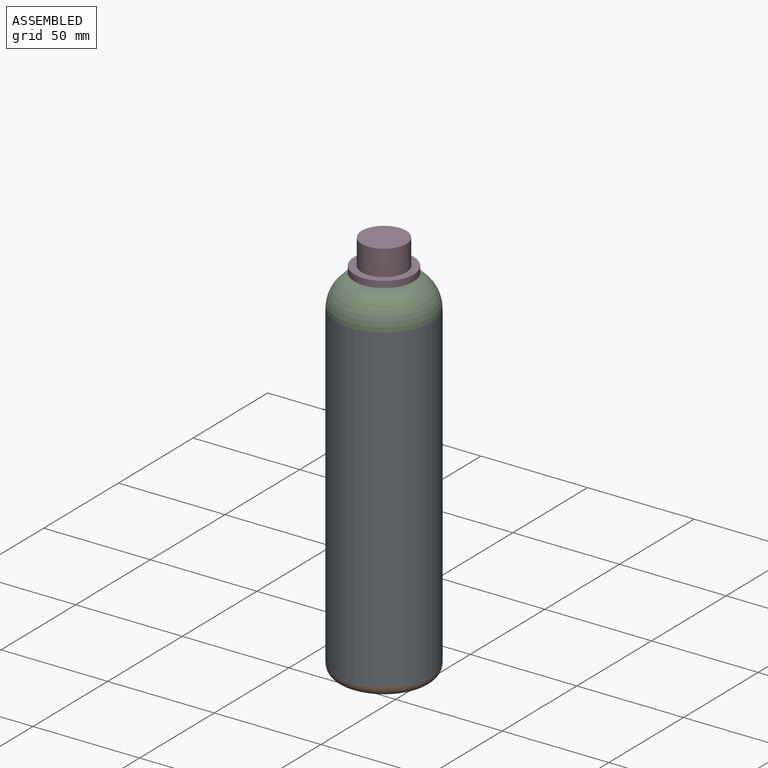
[diagram: assembled view]
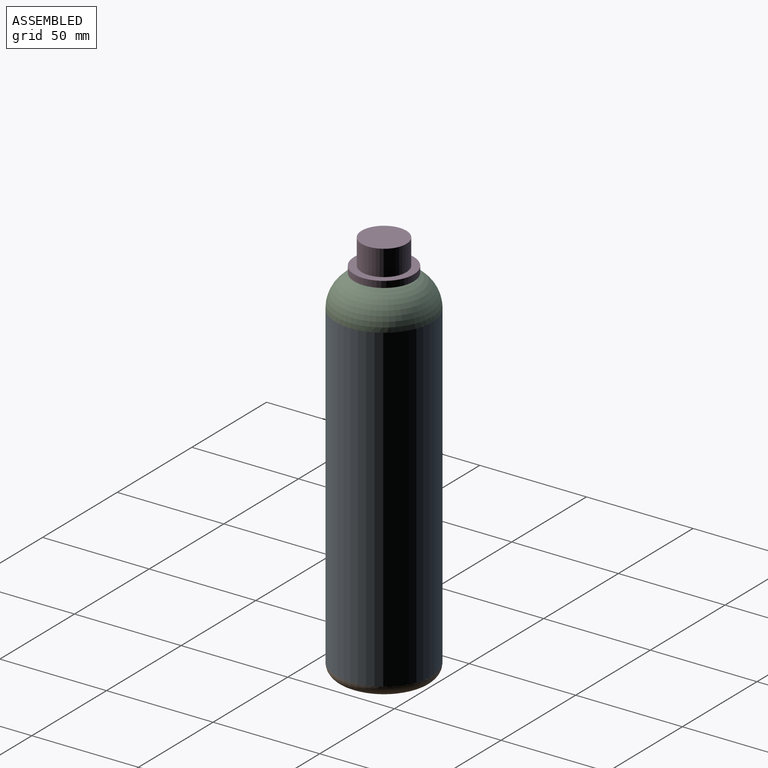
[diagram: assembled view, second angle]
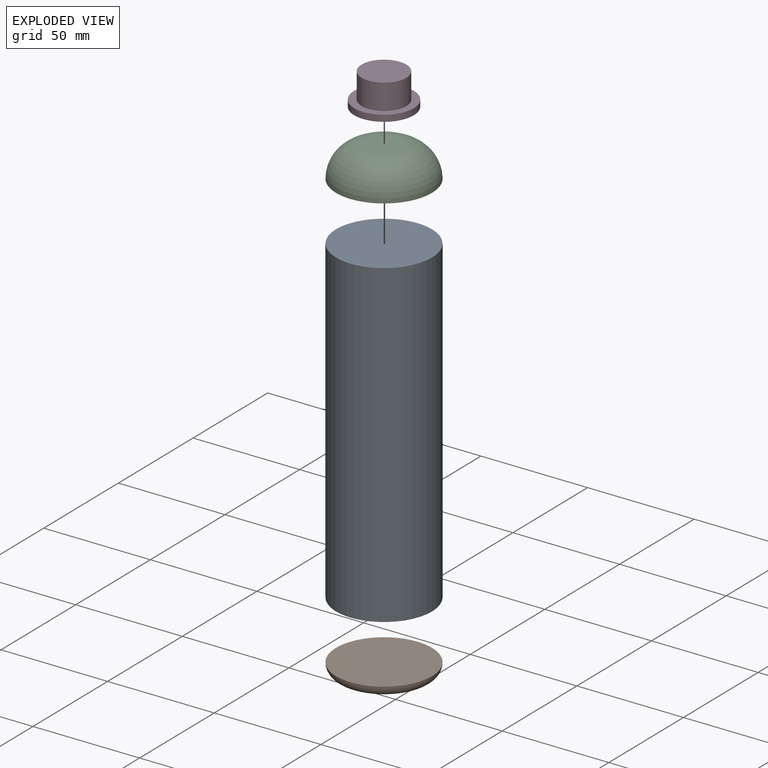
[diagram: exploded view]
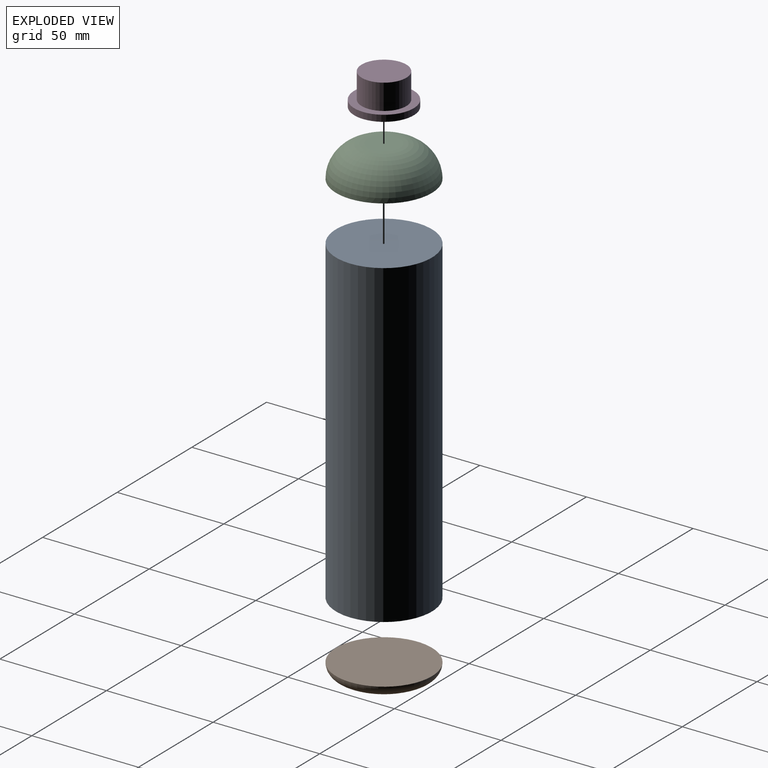
[diagram: exploded view, second angle]
ASSEMBLY  parts=4 mates=3
PART A: 3 faces, bbox 45x45x150 mm
  f0: cylinder r=22.5mm len=150mm, axis (0,0,-1), area 21205.8mm2, adj f1,f2
  f1: plane 45x45mm, normal (0,0,1), area 1590.4mm2, adj f0
  f2: plane 45x45mm, normal (0,0,-1), area 1590.4mm2, adj f0
PART B: 3 faces, bbox 48.7x48.7x8.6 mm
  f0: plane 45x45mm, normal (0,0,1), area 1590.4mm2, adj f2
  f1: plane 35x35mm, normal (0,0,-1), area 962.1mm2, adj f2
  f2: torus R=17.5mm, axis (0,0,1), area 1020.7mm2, adj f0,f1
PART C: 3 faces, bbox 45x45x15 mm
  f0: plane 15x15mm, normal (0,0,1), area 176.7mm2, adj f2
  f1: plane 45x45mm, normal (0,0,-1), area 1590.4mm2, adj f2
  f2: torus R=7.5mm, axis (0,0,1), area 2524mm2, adj f0,f1
PART D: 5 faces, bbox 27.9x27.9x15 mm
  f0: cylinder r=10.49mm len=20.97mm, axis (0,0,-1), area 790.7mm2, adj f1,f3
  f1: plane 20.97x20.97mm, normal (0,0,1), area 345.5mm2, adj f0
  f2: cylinder r=13.94mm len=27.87mm, axis (0,0,-1), area 262.7mm2, adj f3,f4
  f3: plane 27.87x27.87mm, normal (0,0,1), area 264.6mm2, adj f0,f2
  f4: plane 27.87x27.87mm, normal (0,0,-1), area 610.1mm2, adj f2
PLACE A t=(-651.35,-905.8,-248.37)mm
PLACE B t=(-651.35,-905.8,-253.37)mm
PLACE C t=(-651.35,-905.8,-98.37)mm
PLACE D t=(-651.35,-905.8,-83.37)mm
MATE fastened A.f0 <-> C.f2  axis (0,0,1) through (-651.35,-905.8,-98.37)mm
MATE fastened C.f2 <-> D.f0  axis (0,0,1) through (-651.35,-905.8,-83.37)mm
MATE fastened A.f0 <-> B.f2  axis (0,0,-1) through (-651.35,-905.8,-248.37)mm
